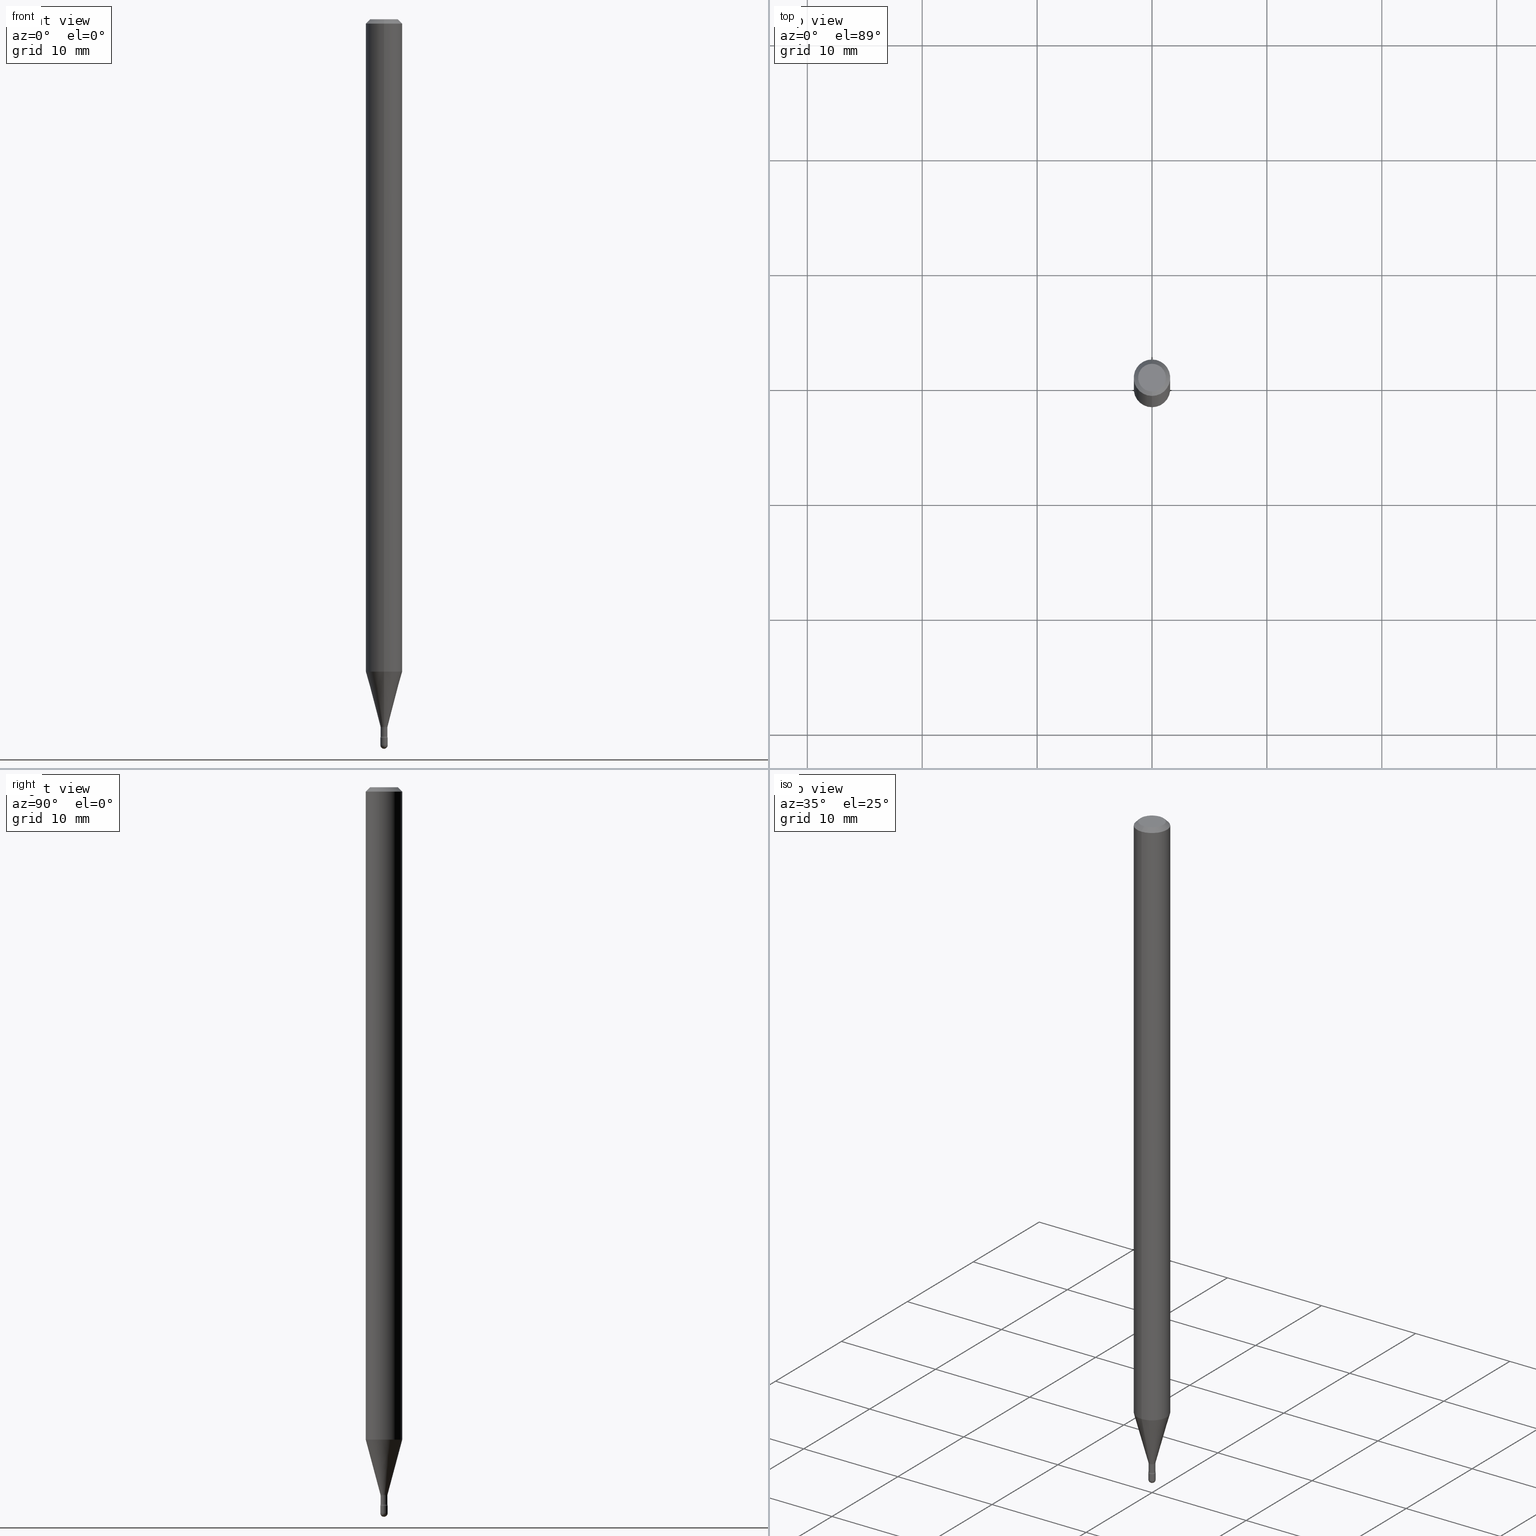
[diagram: canonical four-view strip — front | top / right | iso, engineering-drawing reading convention]
A machine part, canonical four-view strip (front | top / right | iso — engineering-drawing reading convention). The complete STEP part file that produces these views, byte-faithful:
ISO-10303-21;
HEADER;
FILE_DESCRIPTION (( 'STEP AP203' ),
    '1' );
FILE_NAME ('03808.STEP',
    '2024-04-09T20:33:00',
    ( '' ),
    ( '' ),
    'SwSTEP 2.0',
    'SolidWorks 2023',
    '' );
FILE_SCHEMA (( 'CONFIG_CONTROL_DESIGN' ));
ENDSEC;

DATA;
#1 = VECTOR ( 'NONE', #117, 39.37007874015748143 ) ;
#2 = DIRECTION ( 'NONE',  ( -1.000000000000000000, 6.982962677686265922E-15, -4.883557194083112340E-29 ) ) ;
#3 = LINE ( 'NONE', #57, #485 ) ;
#4 = EDGE_CURVE ( 'NONE', #223, #219, #300, .T. ) ;
#5 = FACE_OUTER_BOUND ( 'NONE', #286, .T. ) ;
#6 = APPROVAL_ROLE ( '' ) ;
#7 = DIRECTION ( 'NONE',  ( 1.000000000000000000, -6.982962677686267499E-15, 4.876176775795936353E-29 ) ) ;
#8 = APPROVAL_ROLE ( '' ) ;
#9 = CARTESIAN_POINT ( 'NONE',  ( -1.867942516280482500E-16, -0.02675000000000847186, -2.426974787463811456 ) ) ;
#10 = DIRECTION ( 'NONE',  ( -6.982962677686266711E-15, -1.000000000000000000, 3.491484112957866443E-15 ) ) ;
#11 = AXIS2_PLACEMENT_3D ( 'NONE', #213, #386, #94 ) ;
#12 = AXIS2_PLACEMENT_3D ( 'NONE', #35, #262, #558 ) ;
#13 = LENGTH_MEASURE_WITH_UNIT ( LENGTH_MEASURE( 0.02539999999999999897 ), #415 );
#14 = EDGE_CURVE ( 'NONE', #219, #223, #458, .T. ) ;
#15 = DIRECTION ( 'NONE',  ( -2.445466869031180399E-29, 3.491484112957866837E-15, 1.000000000000000000 ) ) ;
#16 = DIRECTION ( 'NONE',  ( -2.445466869031180399E-29, 3.491484112957866837E-15, 1.000000000000000000 ) ) ;
#17 = CALENDAR_DATE ( 2024, 9, 4 ) ;
#18 = DIRECTION ( 'NONE',  ( 1.000000000000000000, -6.982962677686267499E-15, 4.876176775795936353E-29 ) ) ;
#19 = DIRECTION ( 'NONE',  ( 6.982962677686265922E-15, 1.000000000000000000, -3.483106191921935554E-15 ) ) ;
#20 = DIRECTION ( 'NONE',  ( 6.982962677686265922E-15, 1.000000000000000000, 0.000000000000000000 ) ) ;
#21 = EDGE_LOOP ( 'NONE', ( #258, #340, #116, #163 ) ) ;
#22 = AXIS2_PLACEMENT_3D ( 'NONE', #298, #474, #518 ) ;
#23 = CC_DESIGN_APPROVAL ( #115, ( #71 ) ) ;
#24 = EDGE_CURVE ( 'NONE', #329, #136, #250, .T. ) ;
#25 = EDGE_LOOP ( 'NONE', ( #75, #325, #545, #554 ) ) ;
#26 = LINE ( 'NONE', #196, #1 ) ;
#27 = ORIENTED_EDGE ( 'NONE', *, *, #440, .F. ) ;
#28 = VERTEX_POINT ( 'NONE', #294 ) ;
#29 = CARTESIAN_POINT ( 'NONE',  ( 0.01250000000000000243, -8.727830476773153796E-15, -2.487500000000000266 ) ) ;
#30 = ORIENTED_EDGE ( 'NONE', *, *, #277, .F. ) ;
#31 = CIRCLE ( 'NONE', #81, 0.01174999999999998788 ) ;
#32 = EDGE_CURVE ( 'NONE', #66, #338, #202, .T. ) ;
#33 = ORGANIZATION ( 'UNSPECIFIED', 'UNSPECIFIED', '' ) ;
#34 = ADVANCED_FACE ( 'NONE', ( #564 ), #169, .T. ) ;
#35 = CARTESIAN_POINT ( 'NONE',  ( 6.083103655385528181E-29, -8.685059830372324987E-15, -2.487500000000000266 ) ) ;
#36 = CARTESIAN_POINT ( 'NONE',  ( 6.083103655385528181E-29, -8.685059830372324987E-15, -2.487500000000000266 ) ) ;
#37 = CARTESIAN_POINT ( 'NONE',  ( 6.083103655385528181E-29, -8.685059830372324987E-15, -2.487500000000000266 ) ) ;
#38 = ORIENTED_EDGE ( 'NONE', *, *, #85, .T. ) ;
#39 = CARTESIAN_POINT ( 'NONE',  ( 6.020739431554766394E-29, -8.596033886102268504E-15, -2.462000000000000188 ) ) ;
#40 = DIRECTION ( 'NONE',  ( 1.000000000000000000, -6.982962677686294321E-15, 0.000000000000000000 ) ) ;
#41 = EDGE_CURVE ( 'NONE', #299, #329, #102, .T. ) ;
#42 = AXIS2_PLACEMENT_3D ( 'NONE', #317, #16, #153 ) ;
#43 = AXIS2_PLACEMENT_3D ( 'NONE', #513, #255, #563 ) ;
#44 = AXIS2_PLACEMENT_3D ( 'NONE', #536, #15, #108 ) ;
#45 = APPROVAL_PERSON_ORGANIZATION ( #312, #58, #6 ) ;
#46 = DIRECTION ( 'NONE',  ( -6.982962677686265922E-15, -1.000000000000000000, 4.370956789862821150E-15 ) ) ;
#47 = UNCERTAINTY_MEASURE_WITH_UNIT (LENGTH_MEASURE( 1.000000000000000082E-05 ), #318, 'distance_accuracy_value', 'NONE');
#48 = DIRECTION ( 'NONE',  ( 4.937700262164548042E-15, 0.7071067811865451302, -0.7071067811865499042 ) ) ;
#49 = DIRECTION ( 'NONE',  ( -6.982962677686267499E-15, -1.000000000000000000, 0.000000000000000000 ) ) ;
#50 = EDGE_LOOP ( 'NONE', ( #470, #346, #283, #215 ) ) ;
#51 = DATE_AND_TIME ( #443, #313 ) ;
#52 = AXIS2_PLACEMENT_3D ( 'NONE', #492, #271, #451 ) ;
#53 = DIRECTION ( 'NONE',  ( -2.438088387897960049E-29, 3.491481338843145188E-15, 1.000000000000000000 ) ) ;
#54 = APPLICATION_CONTEXT ( 'configuration controlled 3d designs of mechanical parts and assemblies' ) ;
#55 = PERSON_AND_ORGANIZATION ( #454, #33 ) ;
#56 = FACE_OUTER_BOUND ( 'NONE', #477, .T. ) ;
#57 = CARTESIAN_POINT ( 'NONE',  ( -4.287811248607203282E-16, -0.06250000000000005551, -0.01499999999999986587 ) ) ;
#58 = APPROVAL ( #263, 'UNSPECIFIED' ) ;
#59 = FACE_OUTER_BOUND ( 'NONE', #74, .T. ) ;
#60 = AXIS2_PLACEMENT_3D ( 'NONE', #87, #256, #40 ) ;
#61 = APPLICATION_CONTEXT ( 'configuration controlled 3d designs of mechanical parts and assemblies' ) ;
#62 = AXIS2_PLACEMENT_3D ( 'NONE', #112, #207, #211 ) ;
#63 = APPLICATION_PROTOCOL_DEFINITION ( 'international standard', 'config_control_design', 1994, #54 ) ;
#64 = CYLINDRICAL_SURFACE ( 'NONE', #357, 0.01250000000000000243 ) ;
#65 = FACE_OUTER_BOUND ( 'NONE', #423, .T. ) ;
#66 = VERTEX_POINT ( 'NONE', #397 ) ;
#67 = APPROVAL_DATE_TIME ( #420, #115 ) ;
#68 = EDGE_CURVE ( 'NONE', #125, #473, #184, .T. ) ;
#69 = VECTOR ( 'NONE', #529, 39.37007874015748143 ) ;
#70 = AXIS2_PLACEMENT_3D ( 'NONE', #37, #86, #378 ) ;
#71 = SECURITY_CLASSIFICATION ( '', '', #121 ) ;
#72 = ORIENTED_EDGE ( 'NONE', *, *, #412, .F. ) ;
#73 = CARTESIAN_POINT ( 'NONE',  ( 5.925592433718652298E-29, -8.460188974217597604E-15, -2.423092501787273534 ) ) ;
#74 = EDGE_LOOP ( 'NONE', ( #203, #480, #382, #251 ) ) ;
#75 = ORIENTED_EDGE ( 'NONE', *, *, #259, .F. ) ;
#76 = DIRECTION ( 'NONE',  ( -6.982962677686265133E-15, -1.000000000000000000, 0.000000000000000000 ) ) ;
#77 = EDGE_LOOP ( 'NONE', ( #287, #96 ) ) ;
#78 = ADVANCED_FACE ( 'NONE', ( #56 ), #150, .T. ) ;
#79 = CARTESIAN_POINT ( 'NONE',  ( 4.364351673553919652E-16, 0.06249999999999995143, -0.01500000000000030129 ) ) ;
#80 = ORIENTED_EDGE ( 'NONE', *, *, #414, .F. ) ;
#81 = AXIS2_PLACEMENT_3D ( 'NONE', #460, #155, #193 ) ;
#82 = CIRCLE ( 'NONE', #185, 0.01249999999999996947 ) ;
#83 = CARTESIAN_POINT ( 'NONE',  ( 6.083103655385528181E-29, -8.685059830372324987E-15, -2.487500000000000266 ) ) ;
#84 = ORIENTED_EDGE ( 'NONE', *, *, #404, .F. ) ;
#85 = EDGE_CURVE ( 'NONE', #176, #292, #3, .T. ) ;
#86 = DIRECTION ( 'NONE',  ( -2.445468806185136597E-29, 3.491481338843145583E-15, 1.000000000000000000 ) ) ;
#87 = CARTESIAN_POINT ( 'NONE',  ( 6.020744200827806517E-29, -8.596027056231825938E-15, -2.462000000000000188 ) ) ;
#88 = FACE_OUTER_BOUND ( 'NONE', #245, .T. ) ;
#89 = ORIENTED_EDGE ( 'NONE', *, *, #404, .T. ) ;
#90 = ORIENTED_EDGE ( 'NONE', *, *, #544, .F. ) ;
#91 = CIRCLE ( 'NONE', #260, 0.01175000000000000350 ) ;
#92 = VECTOR ( 'NONE', #48, 39.37007874015748143 ) ;
#93 = CARTESIAN_POINT ( 'NONE',  ( 3.840629472727447874E-16, 0.04749999999999999362, -2.485923956665947374E-16 ) ) ;
#94 = DIRECTION ( 'NONE',  ( 6.982962677686265922E-15, 1.000000000000000000, -3.483106191921935554E-15 ) ) ;
#95 = ORIENTED_EDGE ( 'NONE', *, *, #230, .T. ) ;
#96 = ORIENTED_EDGE ( 'NONE', *, *, #395, .T. ) ;
#97 = ADVANCED_FACE ( 'NONE', ( #320 ), #187, .T. ) ;
#98 = DIRECTION ( 'NONE',  ( -2.445466869031180118E-29, 3.491484112957866837E-15, 1.000000000000000000 ) ) ;
#99 = CARTESIAN_POINT ( 'NONE',  ( 2.656048273965440826E-16, 0.01226111260565552162, -2.423092501787273534 ) ) ;
#100 = AXIS2_PLACEMENT_3D ( 'NONE', #172, #436, #46 ) ;
#101 = AXIS2_PLACEMENT_3D ( 'NONE', #217, #471, #291 ) ;
#102 = LINE ( 'NONE', #360, #279 ) ;
#103 = LOCAL_TIME ( 16, 33, 0.000000000000000000, #506 ) ;
#104 =( NAMED_UNIT ( * ) SI_UNIT ( $, .STERADIAN. ) SOLID_ANGLE_UNIT ( ) );
#105 = DIRECTION ( 'NONE',  ( -2.445466869031180399E-29, 3.491484112957866837E-15, 1.000000000000000000 ) ) ;
#106 = APPROVAL_STATUS ( 'not_yet_approved' ) ;
#107 = FACE_OUTER_BOUND ( 'NONE', #442, .T. ) ;
#108 = DIRECTION ( 'NONE',  ( -6.982962677686266711E-15, -1.000000000000000000, 3.491484112957866443E-15 ) ) ;
#109 = DIRECTION ( 'NONE',  ( 2.445466869031180399E-29, -3.491484112957866837E-15, -1.000000000000000000 ) ) ;
#110 = CARTESIAN_POINT ( 'NONE',  ( 3.316907271900976096E-16, 0.04749999999999999362, 3.181775392957628042E-17 ) ) ;
#111 = DIRECTION ( 'NONE',  ( -6.982962677686266711E-15, -1.000000000000000000, 3.491484112957866443E-15 ) ) ;
#112 = CARTESIAN_POINT ( 'NONE',  ( 2.023538770995804886E-45, -2.889108140282391545E-31, -8.274690030109604637E-17 ) ) ;
#113 = CARTESIAN_POINT ( 'NONE',  ( 5.925592433718652298E-29, -8.460188974217597604E-15, -2.423092501787273534 ) ) ;
#114 = EDGE_CURVE ( 'NONE', #140, #136, #356, .T. ) ;
#115 = APPROVAL ( #364, 'UNSPECIFIED' ) ;
#116 = ORIENTED_EDGE ( 'NONE', *, *, #432, .T. ) ;
#117 = DIRECTION ( 'NONE',  ( -1.807323732225328167E-15, -0.2588190451025179084, 0.9659258262890690894 ) ) ;
#118 = CIRCLE ( 'NONE', #148, 0.01226111260566398187 ) ;
#119 = ORIENTED_EDGE ( 'NONE', *, *, #328, .F. ) ;
#120 = CIRCLE ( 'NONE', #130, 0.01250000000000000243 ) ;
#121 = SECURITY_CLASSIFICATION_LEVEL ( 'unclassified' ) ;
#122 = ADVANCED_FACE ( 'NONE', ( #59 ), #310, .F. ) ;
#123 = DIRECTION ( 'NONE',  ( -6.982962677686265133E-15, -1.000000000000000000, 0.000000000000000000 ) ) ;
#124 = ORIENTED_EDGE ( 'NONE', *, *, #307, .T. ) ;
#125 = VERTEX_POINT ( 'NONE', #152 ) ;
#126 = PLANE ( 'NONE',  #365 ) ;
#127 = DIRECTION ( 'NONE',  ( -2.445466869031180399E-29, 3.491484112957866837E-15, 1.000000000000000000 ) ) ;
#128 = ORIENTED_EDGE ( 'NONE', *, *, #277, .T. ) ;
#129 = AXIS2_PLACEMENT_3D ( 'NONE', #231, #53, #527 ) ;
#130 = AXIS2_PLACEMENT_3D ( 'NONE', #36, #154, #324 ) ;
#131 = CARTESIAN_POINT ( 'NONE',  ( 2.023538770995804886E-45, -2.889108140282391545E-31, -8.274690030109604637E-17 ) ) ;
#132 = DIRECTION ( 'NONE',  ( -6.982962677686265922E-15, -1.000000000000000000, 0.000000000000000000 ) ) ;
#133 = ADVANCED_FACE ( 'NONE', ( #235 ), #490, .T. ) ;
#134 = CARTESIAN_POINT ( 'NONE',  ( -1.169113584055446105E-44, 1.669184350826100908E-30, 4.780733988912460139E-16 ) ) ;
#135 = CYLINDRICAL_SURFACE ( 'NONE', #388, 0.01174999999999999656 ) ;
#136 = VERTEX_POINT ( 'NONE', #275 ) ;
#137 = ORIENTED_EDGE ( 'NONE', *, *, #259, .T. ) ;
#138 = DIRECTION ( 'NONE',  ( -2.445466869031180399E-29, 3.491484112957866837E-15, 1.000000000000000000 ) ) ;
#139 = EDGE_CURVE ( 'NONE', #239, #338, #355, .T. ) ;
#140 = VERTEX_POINT ( 'NONE', #99 ) ;
#141 = EDGE_CURVE ( 'NONE', #125, #136, #183, .T. ) ;
#142 = CARTESIAN_POINT ( 'NONE',  ( 0.000000000000000000, 0.000000000000000000, 0.000000000000000000 ) ) ;
#143 = FACE_OUTER_BOUND ( 'NONE', #77, .T. ) ;
#144 = PLANE ( 'NONE',  #129 ) ;
#145 = PERSON_AND_ORGANIZATION_ROLE ( 'design_supplier' ) ;
#146 = PRODUCT_DEFINITION ( 'UNKNOWN', '', #366, #301 ) ;
#147 = PERSON_AND_ORGANIZATION ( #454, #33 ) ;
#148 = AXIS2_PLACEMENT_3D ( 'NONE', #228, #450, #400 ) ;
#149 = CIRCLE ( 'NONE', #101, 0.01250000000000000069 ) ;
#150 = CYLINDRICAL_SURFACE ( 'NONE', #467, 0.06250000000000000000 ) ;
#151 = COORDINATED_UNIVERSAL_TIME_OFFSET ( 5, 0, .BEHIND. ) ;
#152 = CARTESIAN_POINT ( 'NONE',  ( 8.615330671097230074E-17, 0.01174999999999140794, -2.457316251501201254 ) ) ;
#153 = DIRECTION ( 'NONE',  ( -6.982962677686265922E-15, -1.000000000000000000, 3.491484112957868415E-15 ) ) ;
#154 = DIRECTION ( 'NONE',  ( -2.445468806185136597E-29, 3.491481338843145583E-15, 1.000000000000000000 ) ) ;
#155 = DIRECTION ( 'NONE',  ( -2.445466869031180399E-29, 3.491484112957866837E-15, 1.000000000000000000 ) ) ;
#156 = CIRCLE ( 'NONE', #234, 0.06250000000000000000 ) ;
#157 = EDGE_LOOP ( 'NONE', ( #376, #137, #95, #348 ) ) ;
#158 = ORIENTED_EDGE ( 'NONE', *, *, #141, .F. ) ;
#159 = APPROVAL_ROLE ( '' ) ;
#160 = ORIENTED_EDGE ( 'NONE', *, *, #24, .T. ) ;
#161 = ADVANCED_FACE ( 'NONE', ( #65 ), #144, .T. ) ;
#162 = AXIS2_PLACEMENT_3D ( 'NONE', #83, #552, #220 ) ;
#163 = ORIENTED_EDGE ( 'NONE', *, *, #290, .F. ) ;
#164 = EDGE_LOOP ( 'NONE', ( #80, #128, #90, #547 ) ) ;
#165 = ORIENTED_EDGE ( 'NONE', *, *, #236, .T. ) ;
#166 = CARTESIAN_POINT ( 'NONE',  ( 3.668200303546790742E-31, -5.237226169436829443E-17, -0.01500000000000008271 ) ) ;
#167 = CARTESIAN_POINT ( 'NONE',  ( 5.935086434716741154E-29, -8.473743912979191978E-15, -2.426974787463811456 ) ) ;
#168 = EDGE_CURVE ( 'NONE', #28, #140, #118, .T. ) ;
#169 = CONICAL_SURFACE ( 'NONE', #11, 0.06250000000000000000, 0.7853981633974483900 ) ;
#170 = AXIS2_PLACEMENT_3D ( 'NONE', #131, #390, #343 ) ;
#171 = DIRECTION ( 'NONE',  ( -1.000000000000000000, 6.982962677686266711E-15, -4.883557194083112901E-29 ) ) ;
#172 = CARTESIAN_POINT ( 'NONE',  ( 5.467081872275488067E-29, -7.805556371676380338E-15, -2.235598421515879952 ) ) ;
#173 = DIRECTION ( 'NONE',  ( -2.445466869031180118E-29, 3.491484112957866837E-15, 1.000000000000000000 ) ) ;
#174 = ADVANCED_FACE ( 'NONE', ( #5 ), #531, .T. ) ;
#175 = CARTESIAN_POINT ( 'NONE',  ( -8.881784196995158866E-17, -0.01250000000000867084, -2.487500000000000266 ) ) ;
#176 = VERTEX_POINT ( 'NONE', #484 ) ;
#177 = TOROIDAL_SURFACE ( 'NONE', #532, 0.02674999999999999947, 0.01500000000000002373 ) ;
#178 = AXIS2_PLACEMENT_3D ( 'NONE', #482, #98, #229 ) ;
#179 = PLANE ( 'NONE',  #178 ) ;
#180 = DIRECTION ( 'NONE',  ( -2.445468806185136877E-29, 3.491481338843145188E-15, 1.000000000000000000 ) ) ;
#181 = DIRECTION ( 'NONE',  ( -2.445468806185136597E-29, 3.491481338843145583E-15, 1.000000000000000000 ) ) ;
#182 = DATE_TIME_ROLE ( 'creation_date' ) ;
#183 = LINE ( 'NONE', #272, #69 ) ;
#184 = CIRCLE ( 'NONE', #557, 0.01500000000000001159 ) ;
#185 = AXIS2_PLACEMENT_3D ( 'NONE', #293, #555, #257 ) ;
#186 = CARTESIAN_POINT ( 'NONE',  ( 3.668200303546790742E-31, -5.237226169436829443E-17, -0.01500000000000008271 ) ) ;
#187 = CYLINDRICAL_SURFACE ( 'NONE', #374, 0.06250000000000000000 ) ;
#188 = DATE_AND_TIME ( #17, #534 ) ;
#189 = ADVANCED_FACE ( 'NONE', ( #406 ), #177, .F. ) ;
#190 = ADVANCED_FACE ( 'NONE', ( #309 ), #330, .T. ) ;
#191 = DIRECTION ( 'NONE',  ( -2.445466869031180399E-29, 3.491484112957866837E-15, 1.000000000000000000 ) ) ;
#192 = PERSON_AND_ORGANIZATION_ROLE ( 'classification_officer' ) ;
#193 = DIRECTION ( 'NONE',  ( -6.982962677686266711E-15, -1.000000000000000000, 0.000000000000000000 ) ) ;
#194 = AXIS2_PLACEMENT_3D ( 'NONE', #167, #517, #132 ) ;
#195 = AXIS2_PLACEMENT_3D ( 'NONE', #142, #361, #535 ) ;
#196 = CARTESIAN_POINT ( 'NONE',  ( -8.561889171220093965E-17, -0.01226111260567244211, -2.423092501787273534 ) ) ;
#197 = ORIENTED_EDGE ( 'NONE', *, *, #544, .T. ) ;
#198 = APPROVAL ( #106, 'UNSPECIFIED' ) ;
#199 = DATE_AND_TIME ( #540, #478 ) ;
#200 = DIRECTION ( 'NONE',  ( -6.982962677686265133E-15, -1.000000000000000000, 0.000000000000000000 ) ) ;
#201 = VERTEX_POINT ( 'NONE', #248 ) ;
#202 = CIRCLE ( 'NONE', #60, 0.01250000000000000069 ) ;
#203 = ORIENTED_EDGE ( 'NONE', *, *, #68, .F. ) ;
#204 = AXIS2_PLACEMENT_3D ( 'NONE', #39, #127, #295 ) ;
#205 = DATE_TIME_ROLE ( 'classification_date' ) ;
#206 = DIRECTION ( 'NONE',  ( -6.982962677686265922E-15, -1.000000000000000000, 3.491484112957868415E-15 ) ) ;
#207 = DIRECTION ( 'NONE',  ( -2.445466869031180399E-29, 3.491484112957866837E-15, 1.000000000000000000 ) ) ;
#208 = EDGE_CURVE ( 'NONE', #136, #329, #91, .T. ) ;
#209 = DIRECTION ( 'NONE',  ( 6.982962677686266711E-15, 1.000000000000000000, 0.000000000000000000 ) ) ;
#210 = CC_DESIGN_DATE_AND_TIME_ASSIGNMENT ( #199, #205, ( #71 ) ) ;
#211 = DIRECTION ( 'NONE',  ( -6.982962677686266711E-15, -1.000000000000000000, 3.491484112957867231E-15 ) ) ;
#212 = DIRECTION ( 'NONE',  ( 6.982962677686266711E-15, 1.000000000000000000, 0.000000000000000000 ) ) ;
#213 = CARTESIAN_POINT ( 'NONE',  ( 3.668200303546790742E-31, -5.237226169436829443E-17, -0.01500000000000008271 ) ) ;
#214 = VECTOR ( 'NONE', #180, 39.37007874015748143 ) ;
#215 = ORIENTED_EDGE ( 'NONE', *, *, #230, .F. ) ;
#216 = TOROIDAL_SURFACE ( 'NONE', #22, 0.02675000000000000294, 0.01500000000000001506 ) ;
#217 = CARTESIAN_POINT ( 'NONE',  ( 6.020739431554766394E-29, -8.596033886102268504E-15, -2.462000000000000188 ) ) ;
#218 = CARTESIAN_POINT ( 'NONE',  ( 5.467081872275488067E-29, -7.805556371676380338E-15, -2.235598421515879952 ) ) ;
#219 = VERTEX_POINT ( 'NONE', #238 ) ;
#220 = DIRECTION ( 'NONE',  ( 1.000000000000000000, -6.982962677686292743E-15, 0.000000000000000000 ) ) ;
#221 = VERTEX_POINT ( 'NONE', #457 ) ;
#222 = DIRECTION ( 'NONE',  ( -2.445468806185136877E-29, 3.491481338843145188E-15, 1.000000000000000000 ) ) ;
#223 = VERTEX_POINT ( 'NONE', #510 ) ;
#224 = AXIS2_PLACEMENT_3D ( 'NONE', #408, #314, #445 ) ;
#225 = AXIS2_PLACEMENT_3D ( 'NONE', #9, #2, #49 ) ;
#226 = APPROVAL_DATE_TIME ( #51, #58 ) ;
#227 = DIRECTION ( 'NONE',  ( 1.839019923739597949E-15, 0.2588190451025246253, 0.9659258262890670910 ) ) ;
#228 = CARTESIAN_POINT ( 'NONE',  ( 5.925592433718652298E-29, -8.460188974217597604E-15, -2.423092501787273534 ) ) ;
#229 = DIRECTION ( 'NONE',  ( -6.982962677686265922E-15, -1.000000000000000000, 3.491484112957866837E-15 ) ) ;
#230 = EDGE_CURVE ( 'NONE', #28, #219, #26, .T. ) ;
#231 = CARTESIAN_POINT ( 'NONE',  ( 6.020744200827806517E-29, -8.596027056231825938E-15, -2.462000000000000188 ) ) ;
#232 = DIRECTION ( 'NONE',  ( -6.982962677686265922E-15, -1.000000000000000000, 3.491484112957866443E-15 ) ) ;
#233 = CLOSED_SHELL ( 'NONE', ( #539, #387, #161, #342, #174 ) ) ;
#234 = AXIS2_PLACEMENT_3D ( 'NONE', #166, #339, #515 ) ;
#235 = FACE_OUTER_BOUND ( 'NONE', #344, .T. ) ;
#236 = EDGE_CURVE ( 'NONE', #299, #125, #322, .T. ) ;
#237 = CARTESIAN_POINT ( 'NONE',  ( -1.867942516280475598E-16, -0.02675000000000858288, -2.457316251501201254 ) ) ;
#238 = CARTESIAN_POINT ( 'NONE',  ( -4.364351673553370901E-16, -0.06250000000000781319, -2.235598421515879952 ) ) ;
#239 = VERTEX_POINT ( 'NONE', #29 ) ;
#240 = DIRECTION ( 'NONE',  ( 6.982962677686265922E-15, 1.000000000000000000, -3.491484112957866837E-15 ) ) ;
#241 = CC_DESIGN_PERSON_AND_ORGANIZATION_ASSIGNMENT ( #147, #405, ( #496 ) ) ;
#242 = VECTOR ( 'NONE', #222, 39.37007874015748143 ) ;
#243 = EDGE_LOOP ( 'NONE', ( #72, #565, #89, #508 ) ) ;
#244 = CALENDAR_DATE ( 2024, 9, 4 ) ;
#245 = EDGE_LOOP ( 'NONE', ( #158, #548, #542, #278 ) ) ;
#246 = FACE_OUTER_BOUND ( 'NONE', #157, .T. ) ;
#247 = ORIENTED_EDGE ( 'NONE', *, *, #553, .F. ) ;
#248 = CARTESIAN_POINT ( 'NONE',  ( 4.440892098501175406E-16, 0.06249999999999995143, -0.01500000000000030129 ) ) ;
#249 = CARTESIAN_POINT ( 'NONE',  ( 0.01250000000000000069, -8.683314089702904272E-15, -2.462000000000000188 ) ) ;
#250 = CIRCLE ( 'NONE', #194, 0.01175000000000000350 ) ;
#251 = ORIENTED_EDGE ( 'NONE', *, *, #335, .T. ) ;
#252 = VECTOR ( 'NONE', #173, 39.37007874015748143 ) ;
#253 = EDGE_CURVE ( 'NONE', #125, #299, #31, .T. ) ;
#254 = FACE_OUTER_BOUND ( 'NONE', #21, .T. ) ;
#255 = DIRECTION ( 'NONE',  ( -2.445466869031180399E-29, 3.491484112957866837E-15, 1.000000000000000000 ) ) ;
#256 = DIRECTION ( 'NONE',  ( -2.445468806185136597E-29, 3.491481338843145583E-15, 1.000000000000000000 ) ) ;
#257 = DIRECTION ( 'NONE',  ( -7.105427357601001070E-15, -1.000000000000000000, 0.000000000000000000 ) ) ;
#258 = ORIENTED_EDGE ( 'NONE', *, *, #253, .F. ) ;
#259 = EDGE_CURVE ( 'NONE', #140, #28, #398, .T. ) ;
#260 = AXIS2_PLACEMENT_3D ( 'NONE', #418, #336, #331 ) ;
#261 = AXIS2_PLACEMENT_3D ( 'NONE', #464, #276, #76 ) ;
#262 = DIRECTION ( 'NONE',  ( -2.445468806185136597E-29, 3.491481338843145583E-15, 1.000000000000000000 ) ) ;
#263 = APPROVAL_STATUS ( 'not_yet_approved' ) ;
#264 = DIRECTION ( 'NONE',  ( 7.105427357601001859E-15, 1.000000000000000000, 0.000000000000000000 ) ) ;
#265 = AXIS2_PLACEMENT_3D ( 'NONE', #270, #483, #111 ) ;
#266 = ADVANCED_FACE ( 'NONE', ( #246 ), #267, .T. ) ;
#267 = CONICAL_SURFACE ( 'NONE', #533, 0.01226111260566398187, 0.2617993877991499629 ) ;
#268 = CARTESIAN_POINT ( 'NONE',  ( 0.000000000000000000, 0.000000000000000000, 0.000000000000000000 ) ) ;
#269 = COORDINATED_UNIVERSAL_TIME_OFFSET ( 5, 0, .BEHIND. ) ;
#270 = CARTESIAN_POINT ( 'NONE',  ( 6.009290239977977822E-29, -8.579673835752433814E-15, -2.457316251501201254 ) ) ;
#271 = DIRECTION ( 'NONE',  ( -2.445468806185136597E-29, 3.491481338843145583E-15, 1.000000000000000000 ) ) ;
#272 = CARTESIAN_POINT ( 'NONE',  ( 8.348877145181173506E-17, 0.01174999999999999656, 4.370484605639911277E-16 ) ) ;
#273 = ADVANCED_FACE ( 'NONE', ( #285 ), #323, .T. ) ;
#274 = CLOSED_SHELL ( 'NONE', ( #497, #133, #372, #34, #78, #273, #266, #97, #190, #530, #447, #122, #383, #189 ) ) ;
#275 = CARTESIAN_POINT ( 'NONE',  ( 8.348877145187189803E-17, 0.01174999999999152937, -2.426974787463811456 ) ) ;
#276 = DIRECTION ( 'NONE',  ( -2.445466869031180399E-29, 3.491484112957866837E-15, 1.000000000000000000 ) ) ;
#277 = EDGE_CURVE ( 'NONE', #337, #221, #516, .T. ) ;
#278 = ORIENTED_EDGE ( 'NONE', *, *, #208, .F. ) ;
#279 = VECTOR ( 'NONE', #537, 39.37007874015748143 ) ;
#280 = CARTESIAN_POINT ( 'NONE',  ( 6.009285479778078448E-29, -8.579680652629622563E-15, -2.457316251501201254 ) ) ;
#281 = AXIS2_PLACEMENT_3D ( 'NONE', #268, #181, #7 ) ;
#282 = CIRCLE ( 'NONE', #43, 0.06250000000000000000 ) ;
#283 = ORIENTED_EDGE ( 'NONE', *, *, #14, .F. ) ;
#284 = ORIENTED_EDGE ( 'NONE', *, *, #335, .F. ) ;
#285 = FACE_OUTER_BOUND ( 'NONE', #50, .T. ) ;
#286 = EDGE_LOOP ( 'NONE', ( #551, #389, #124, #368, #370 ) ) ;
#287 = ORIENTED_EDGE ( 'NONE', *, *, #553, .T. ) ;
#288 = CARTESIAN_POINT ( 'NONE',  ( 6.083103655385528181E-29, -8.685059830372324987E-15, -2.487500000000000266 ) ) ;
#289 = EDGE_LOOP ( 'NONE', ( #303, #430, #466, #160 ) ) ;
#290 = EDGE_CURVE ( 'NONE', #299, #504, #486, .T. ) ;
#291 = DIRECTION ( 'NONE',  ( -6.982962677686265133E-15, -1.000000000000000000, 0.000000000000000000 ) ) ;
#292 = VERTEX_POINT ( 'NONE', #503 ) ;
#293 = CARTESIAN_POINT ( 'NONE',  ( 6.083103655385528181E-29, -8.685059830372324987E-15, -2.487500000000000266 ) ) ;
#294 = CARTESIAN_POINT ( 'NONE',  ( -8.561889171220093965E-17, -0.01226111260567244211, -2.423092501787273534 ) ) ;
#295 = DIRECTION ( 'NONE',  ( -6.982962677686265133E-15, -1.000000000000000000, 0.000000000000000000 ) ) ;
#296 = VERTEX_POINT ( 'NONE', #175 ) ;
#297 = ORIENTED_EDGE ( 'NONE', *, *, #514, .F. ) ;
#298 = CARTESIAN_POINT ( 'NONE',  ( 6.009290239977977822E-29, -8.579673835752433814E-15, -2.457316251501201254 ) ) ;
#299 = VERTEX_POINT ( 'NONE', #523 ) ;
#300 = CIRCLE ( 'NONE', #100, 0.06250000000000000000 ) ;
#301 = DESIGN_CONTEXT ( 'detailed design', #54, 'design' ) ;
#302 = CIRCLE ( 'NONE', #162, 0.01250000000000000243 ) ;
#303 = ORIENTED_EDGE ( 'NONE', *, *, #114, .F. ) ;
#304 = LINE ( 'NONE', #433, #252 ) ;
#305 = DIRECTION ( 'NONE',  ( -6.982962677686265922E-15, -1.000000000000000000, 3.491484112957866443E-15 ) ) ;
#306 = EDGE_CURVE ( 'NONE', #327, #201, #468, .T. ) ;
#307 = EDGE_CURVE ( 'NONE', #296, #239, #509, .T. ) ;
#308 = PERSON_AND_ORGANIZATION ( #454, #33 ) ;
#309 = FACE_OUTER_BOUND ( 'NONE', #521, .T. ) ;
#310 = TOROIDAL_SURFACE ( 'NONE', #265, 0.02675000000000000294, 0.01500000000000001506 ) ;
#311 = AXIS2_PLACEMENT_3D ( 'NONE', #288, #416, #20 ) ;
#312 = PERSON_AND_ORGANIZATION ( #454, #33 ) ;
#313 = LOCAL_TIME ( 16, 33, 0.000000000000000000, #269 ) ;
#314 = DIRECTION ( 'NONE',  ( 1.000000000000000000, -7.105427357601001070E-15, 4.926315542515189764E-29 ) ) ;
#315 = EDGE_CURVE ( 'NONE', #201, #292, #282, .T. ) ;
#316 = CARTESIAN_POINT ( 'NONE',  ( 8.712044494297058757E-17, 0.01226111260565552162, -2.423092501787273534 ) ) ;
#317 = CARTESIAN_POINT ( 'NONE',  ( -1.169113584055446105E-44, 1.669184350826100908E-30, 4.780733988912460139E-16 ) ) ;
#318 =( CONVERSION_BASED_UNIT ( 'INCH', #13 ) LENGTH_UNIT ( ) NAMED_UNIT ( #481 ) );
#319 = COORDINATED_UNIVERSAL_TIME_OFFSET ( 5, 0, .BEHIND. ) ;
#320 = FACE_OUTER_BOUND ( 'NONE', #243, .T. ) ;
#321 = SHAPE_DEFINITION_REPRESENTATION ( #410, #371 ) ;
#322 = CIRCLE ( 'NONE', #524, 0.01174999999999998788 ) ;
#323 = CONICAL_SURFACE ( 'NONE', #261, 0.01226111260566398187, 0.2617993877991499629 ) ;
#324 = DIRECTION ( 'NONE',  ( 1.000000000000000000, -6.982962677686292743E-15, 0.000000000000000000 ) ) ;
#325 = ORIENTED_EDGE ( 'NONE', *, *, #114, .T. ) ;
#326 = DIRECTION ( 'NONE',  ( -2.445466869031180399E-29, 3.491484112957866837E-15, 1.000000000000000000 ) ) ;
#327 = VERTEX_POINT ( 'NONE', #93 ) ;
#328 = EDGE_CURVE ( 'NONE', #550, #296, #302, .T. ) ;
#329 = VERTEX_POINT ( 'NONE', #384 ) ;
#330 = CONICAL_SURFACE ( 'NONE', #446, 0.06250000000000000000, 0.7853981633974483900 ) ;
#331 = DIRECTION ( 'NONE',  ( -6.982962677686265922E-15, -1.000000000000000000, 0.000000000000000000 ) ) ;
#332 = CIRCLE ( 'NONE', #12, 0.01250000000000000243 ) ;
#333 = ORIENTED_EDGE ( 'NONE', *, *, #440, .T. ) ;
#334 = ORIENTED_EDGE ( 'NONE', *, *, #432, .F. ) ;
#335 = EDGE_CURVE ( 'NONE', #504, #473, #459, .T. ) ;
#336 = DIRECTION ( 'NONE',  ( -2.445466869031180399E-29, 3.491484112957866837E-15, 1.000000000000000000 ) ) ;
#337 = VERTEX_POINT ( 'NONE', #520 ) ;
#338 = VERTEX_POINT ( 'NONE', #249 ) ;
#339 = DIRECTION ( 'NONE',  ( -2.445466869031180399E-29, 3.491484112957866837E-15, 1.000000000000000000 ) ) ;
#340 = ORIENTED_EDGE ( 'NONE', *, *, #68, .T. ) ;
#341 = CIRCLE ( 'NONE', #170, 0.04749999999999999362 ) ;
#342 = ADVANCED_FACE ( 'NONE', ( #425 ), #345, .T. ) ;
#343 = DIRECTION ( 'NONE',  ( -6.982962677686266711E-15, -1.000000000000000000, 3.491484112957867231E-15 ) ) ;
#344 = EDGE_LOOP ( 'NONE', ( #165, #438, #562, #465 ) ) ;
#345 = SPHERICAL_SURFACE ( 'NONE', #407, 0.01249999999999996947 ) ;
#346 = ORIENTED_EDGE ( 'NONE', *, *, #498, .T. ) ;
#347 = CARTESIAN_POINT ( 'NONE',  ( 6.083103655385528181E-29, -8.685059830372324987E-15, -2.487500000000000266 ) ) ;
#348 = ORIENTED_EDGE ( 'NONE', *, *, #4, .F. ) ;
#349 = APPROVAL_PERSON_ORGANIZATION ( #55, #198, #8 ) ;
#350 = DIRECTION ( 'NONE',  ( 1.000000000000000000, -7.105427357601001070E-15, 4.926315542515189764E-29 ) ) ;
#351 = PERSON_AND_ORGANIZATION_ROLE ( 'creator' ) ;
#352 = CARTESIAN_POINT ( 'NONE',  ( 1.900701818158868727E-16, 0.02674999999999142300, -2.457316251501201254 ) ) ;
#353 = MANIFOLD_SOLID_BREP ( 'Body-Move/Copy2[1]', #233 ) ;
#354 = MANIFOLD_SOLID_BREP ( 'Body-Move/Copy2[2]', #274 ) ;
#355 = LINE ( 'NONE', #456, #214 ) ;
#356 = CIRCLE ( 'NONE', #224, 0.01500000000000002720 ) ;
#357 = AXIS2_PLACEMENT_3D ( 'NONE', #502, #411, #18 ) ;
#358 = CIRCLE ( 'NONE', #52, 0.01250000000000000069 ) ;
#359 = CARTESIAN_POINT ( 'NONE',  ( -0.01250000000000000243, 8.881784197001254049E-17, -6.148668862818633278E-31 ) ) ;
#360 = CARTESIAN_POINT ( 'NONE',  ( -8.204981146281360131E-17, -0.01174999999999999656, 5.190983372185009988E-16 ) ) ;
#361 = DIRECTION ( 'NONE',  ( 0.000000000000000000, 0.000000000000000000, 1.000000000000000000 ) ) ;
#362 = DIRECTION ( 'NONE',  ( -2.445466869031180399E-29, 3.491484112957866837E-15, 1.000000000000000000 ) ) ;
#363 = DIRECTION ( 'NONE',  ( -1.000000000000000000, 6.982962677686265922E-15, -4.883557194083112340E-29 ) ) ;
#364 = APPROVAL_STATUS ( 'not_yet_approved' ) ;
#365 = AXIS2_PLACEMENT_3D ( 'NONE', #110, #428, #240 ) ;
#366 = PRODUCT_DEFINITION_FORMATION_WITH_SPECIFIED_SOURCE ( 'ANY', '', #496, .NOT_KNOWN. ) ;
#367 = EDGE_CURVE ( 'NONE', #221, #550, #332, .T. ) ;
#368 = ORIENTED_EDGE ( 'NONE', *, *, #139, .T. ) ;
#369 = ORIENTED_EDGE ( 'NONE', *, *, #32, .T. ) ;
#370 = ORIENTED_EDGE ( 'NONE', *, *, #32, .F. ) ;
#371 = ADVANCED_BREP_SHAPE_REPRESENTATION ( '03808', ( #353, #354, #195 ), #453 ) ;
#372 = ADVANCED_FACE ( 'NONE', ( #254 ), #216, .F. ) ;
#373 = PERSON_AND_ORGANIZATION ( #454, #33 ) ;
#374 = AXIS2_PLACEMENT_3D ( 'NONE', #495, #362, #232 ) ;
#375 = APPROVAL_PERSON_ORGANIZATION ( #373, #115, #159 ) ;
#376 = ORIENTED_EDGE ( 'NONE', *, *, #498, .F. ) ;
#377 = FACE_OUTER_BOUND ( 'NONE', #511, .T. ) ;
#378 = DIRECTION ( 'NONE',  ( 1.000000000000000000, -6.982962677686292743E-15, 0.000000000000000000 ) ) ;
#379 = ORIENTED_EDGE ( 'NONE', *, *, #412, .T. ) ;
#380 = ORIENTED_EDGE ( 'NONE', *, *, #85, .F. ) ;
#381 = LINE ( 'NONE', #393, #559 ) ;
#382 = ORIENTED_EDGE ( 'NONE', *, *, #290, .T. ) ;
#383 = ADVANCED_FACE ( 'NONE', ( #88 ), #135, .T. ) ;
#384 = CARTESIAN_POINT ( 'NONE',  ( -8.204981146275430116E-17, -0.01175000000000847589, -2.426974787463811456 ) ) ;
#385 = AXIS2_PLACEMENT_3D ( 'NONE', #218, #391, #556 ) ;
#386 = DIRECTION ( 'NONE',  ( 2.445466869031180399E-29, -3.491484112957866837E-15, -1.000000000000000000 ) ) ;
#387 = ADVANCED_FACE ( 'NONE', ( #472 ), #429, .T. ) ;
#388 = AXIS2_PLACEMENT_3D ( 'NONE', #134, #138, #206 ) ;
#389 = ORIENTED_EDGE ( 'NONE', *, *, #328, .T. ) ;
#390 = DIRECTION ( 'NONE',  ( -2.445466869031180399E-29, 3.491484112957866837E-15, 1.000000000000000000 ) ) ;
#391 = DIRECTION ( 'NONE',  ( -2.445466869031180399E-29, 3.491484112957866837E-15, 1.000000000000000000 ) ) ;
#392 = ORIENTED_EDGE ( 'NONE', *, *, #414, .T. ) ;
#393 = CARTESIAN_POINT ( 'NONE',  ( -4.364351673553916201E-16, -0.06250000000000000000, 6.962911559511127405E-16 ) ) ;
#394 = ORIENTED_EDGE ( 'NONE', *, *, #514, .T. ) ;
#395 = EDGE_CURVE ( 'NONE', #176, #327, #341, .T. ) ;
#396 = LINE ( 'NONE', #316, #469 ) ;
#397 = CARTESIAN_POINT ( 'NONE',  ( -0.01250000000000000069, -8.551725601332063255E-15, -2.462000000000000188 ) ) ;
#398 = CIRCLE ( 'NONE', #543, 0.01226111260566398187 ) ;
#399 = PERSON_AND_ORGANIZATION ( #454, #33 ) ;
#400 = DIRECTION ( 'NONE',  ( -6.982962677686265133E-15, -1.000000000000000000, 0.000000000000000000 ) ) ;
#401 = PERSON_AND_ORGANIZATION_ROLE ( 'creator' ) ;
#402 = CARTESIAN_POINT ( 'NONE',  ( 8.881784197007275276E-17, 0.01249999999999141034, -2.462000000000000188 ) ) ;
#403 = DIRECTION ( 'NONE',  ( -4.851104656540964275E-15, -0.7071067811865500152, -0.7071067811865450192 ) ) ;
#404 = EDGE_CURVE ( 'NONE', #219, #292, #381, .T. ) ;
#405 = PERSON_AND_ORGANIZATION_ROLE ( 'design_owner' ) ;
#406 = FACE_OUTER_BOUND ( 'NONE', #289, .T. ) ;
#407 = AXIS2_PLACEMENT_3D ( 'NONE', #347, #171, #212 ) ;
#408 = CARTESIAN_POINT ( 'NONE',  ( 1.900701818158861085E-16, 0.02674999999999152708, -2.426974787463811456 ) ) ;
#409 = CALENDAR_DATE ( 2024, 9, 4 ) ;
#410 = PRODUCT_DEFINITION_SHAPE ( 'NONE', 'NONE',  #146 ) ;
#411 = DIRECTION ( 'NONE',  ( -2.445468806185136597E-29, 3.491481338843145583E-15, 1.000000000000000000 ) ) ;
#412 = EDGE_CURVE ( 'NONE', #223, #201, #304, .T. ) ;
#413 = PERSON_AND_ORGANIZATION ( #454, #33 ) ;
#414 = EDGE_CURVE ( 'NONE', #337, #296, #82, .T. ) ;
#415 =( LENGTH_UNIT ( ) NAMED_UNIT ( * ) SI_UNIT ( $, .METRE. ) );
#416 = DIRECTION ( 'NONE',  ( 1.000000000000000000, -6.982962677686265922E-15, 4.883557194083112340E-29 ) ) ;
#417 = CC_DESIGN_PERSON_AND_ORGANIZATION_ASSIGNMENT ( #413, #192, ( #71 ) ) ;
#418 = CARTESIAN_POINT ( 'NONE',  ( 5.935086434716741154E-29, -8.473743912979191978E-15, -2.426974787463811456 ) ) ;
#419 = ORIENTED_EDGE ( 'NONE', *, *, #488, .T. ) ;
#420 = DATE_AND_TIME ( #244, #103 ) ;
#421 = ORIENTED_EDGE ( 'NONE', *, *, #367, .F. ) ;
#422 = CC_DESIGN_PERSON_AND_ORGANIZATION_ASSIGNMENT ( #528, #145, ( #366 ) ) ;
#423 = EDGE_LOOP ( 'NONE', ( #394, #369 ) ) ;
#424 = DIRECTION ( 'NONE',  ( -6.982962677686266711E-15, -1.000000000000000000, 0.000000000000000000 ) ) ;
#425 = FACE_OUTER_BOUND ( 'NONE', #164, .T. ) ;
#426 = AXIS2_PLACEMENT_3D ( 'NONE', #237, #363, #541 ) ;
#427 = ORIENTED_EDGE ( 'NONE', *, *, #306, .F. ) ;
#428 = DIRECTION ( 'NONE',  ( 2.445466869031180118E-29, -3.491484112957866837E-15, -1.000000000000000000 ) ) ;
#429 = SPHERICAL_SURFACE ( 'NONE', #476, 0.01249999999999996947 ) ;
#430 = ORIENTED_EDGE ( 'NONE', *, *, #168, .F. ) ;
#431 = CARTESIAN_POINT ( 'NONE',  ( -0.01250000000000000243, -8.551725601332063255E-15, -2.487500000000000266 ) ) ;
#432 = EDGE_CURVE ( 'NONE', #473, #504, #149, .T. ) ;
#433 = CARTESIAN_POINT ( 'NONE',  ( 4.440892098500625669E-16, 0.06250000000000000000, 2.598556418313793859E-16 ) ) ;
#434 = DIRECTION ( 'NONE',  ( -1.000000000000000000, 6.982962677686266711E-15, -4.883557194083112901E-29 ) ) ;
#435 = CIRCLE ( 'NONE', #62, 0.04749999999999999362 ) ;
#436 = DIRECTION ( 'NONE',  ( -2.445466869031180399E-29, 3.491484112957866837E-15, 1.000000000000000000 ) ) ;
#437 = LOCAL_TIME ( 16, 33, 0.000000000000000000, #151 ) ;
#438 = ORIENTED_EDGE ( 'NONE', *, *, #141, .T. ) ;
#439 = CARTESIAN_POINT ( 'NONE',  ( 6.083103655385528181E-29, -8.685059830372324987E-15, -2.487500000000000266 ) ) ;
#440 = EDGE_CURVE ( 'NONE', #292, #201, #156, .T. ) ;
#441 = ORIENTED_EDGE ( 'NONE', *, *, #367, .T. ) ;
#442 = EDGE_LOOP ( 'NONE', ( #284, #334 ) ) ;
#443 = CALENDAR_DATE ( 2024, 9, 4 ) ;
#444 = FACE_OUTER_BOUND ( 'NONE', #25, .T. ) ;
#445 = DIRECTION ( 'NONE',  ( 7.105427357601000281E-15, 1.000000000000000000, 0.000000000000000000 ) ) ;
#446 = AXIS2_PLACEMENT_3D ( 'NONE', #186, #109, #19 ) ;
#447 = ADVANCED_FACE ( 'NONE', ( #107 ), #179, .F. ) ;
#448 = DIRECTION ( 'NONE',  ( -2.445466869031180399E-29, 3.491484112957866837E-15, 1.000000000000000000 ) ) ;
#449 = LINE ( 'NONE', #359, #242 ) ;
#450 = DIRECTION ( 'NONE',  ( -2.445466869031180399E-29, 3.491484112957866837E-15, 1.000000000000000000 ) ) ;
#451 = DIRECTION ( 'NONE',  ( 1.000000000000000000, -6.982962677686294321E-15, 0.000000000000000000 ) ) ;
#452 = CARTESIAN_POINT ( 'NONE',  ( -1.169113584055446105E-44, 1.669184350826100908E-30, 4.780733988912460139E-16 ) ) ;
#453 =( GEOMETRIC_REPRESENTATION_CONTEXT ( 3 ) GLOBAL_UNCERTAINTY_ASSIGNED_CONTEXT ( ( #47 ) ) GLOBAL_UNIT_ASSIGNED_CONTEXT ( ( #318, #494, #104 ) ) REPRESENTATION_CONTEXT ( 'NONE', 'WORKASPACE' ) );
#454 = PERSON ( 'UNSPECIFIED', 'UNSPECIFIED', 'UNSPECIFIED', ('UNSPECIFIED'), ('UNSPECIFIED'), ('UNSPECIFIED') ) ;
#455 = APPLICATION_PROTOCOL_DEFINITION ( 'international standard', 'config_control_design', 1994, #61 ) ;
#456 = CARTESIAN_POINT ( 'NONE',  ( 0.01250000000000000243, -8.728703347107835853E-17, 6.095220969744921493E-31 ) ) ;
#457 = CARTESIAN_POINT ( 'NONE',  ( 8.728703347113906385E-17, 0.01249999999999130106, -2.487500000000000266 ) ) ;
#458 = CIRCLE ( 'NONE', #385, 0.06250000000000000000 ) ;
#459 = CIRCLE ( 'NONE', #204, 0.01250000000000000069 ) ;
#460 = CARTESIAN_POINT ( 'NONE',  ( 6.009285479778078448E-29, -8.579680652629622563E-15, -2.457316251501201254 ) ) ;
#461 = CC_DESIGN_DATE_AND_TIME_ASSIGNMENT ( #188, #182, ( #146 ) ) ;
#462 = EDGE_LOOP ( 'NONE', ( #505, #38, #333, #427 ) ) ;
#463 = ORIENTED_EDGE ( 'NONE', *, *, #315, .T. ) ;
#464 = CARTESIAN_POINT ( 'NONE',  ( 5.925592433718652298E-29, -8.460188974217597604E-15, -2.423092501787273534 ) ) ;
#465 = ORIENTED_EDGE ( 'NONE', *, *, #41, .F. ) ;
#466 = ORIENTED_EDGE ( 'NONE', *, *, #475, .T. ) ;
#467 = AXIS2_PLACEMENT_3D ( 'NONE', #452, #105, #305 ) ;
#468 = LINE ( 'NONE', #79, #92 ) ;
#469 = VECTOR ( 'NONE', #227, 39.37007874015748854 ) ;
#470 = ORIENTED_EDGE ( 'NONE', *, *, #168, .T. ) ;
#471 = DIRECTION ( 'NONE',  ( -2.445466869031180399E-29, 3.491484112957866837E-15, 1.000000000000000000 ) ) ;
#472 = FACE_OUTER_BOUND ( 'NONE', #479, .T. ) ;
#473 = VERTEX_POINT ( 'NONE', #402 ) ;
#474 = DIRECTION ( 'NONE',  ( -2.445466869031180399E-29, 3.491484112957866837E-15, 1.000000000000000000 ) ) ;
#475 = EDGE_CURVE ( 'NONE', #28, #329, #549, .T. ) ;
#476 = AXIS2_PLACEMENT_3D ( 'NONE', #439, #434, #209 ) ;
#477 = EDGE_LOOP ( 'NONE', ( #522, #379, #27, #84 ) ) ;
#478 = LOCAL_TIME ( 16, 33, 0.000000000000000000, #546 ) ;
#479 = EDGE_LOOP ( 'NONE', ( #30, #392, #119, #421 ) ) ;
#480 = ORIENTED_EDGE ( 'NONE', *, *, #236, .F. ) ;
#481 = DIMENSIONAL_EXPONENTS ( 1.000000000000000000, 0.000000000000000000, 0.000000000000000000, 0.000000000000000000, 0.000000000000000000, 0.000000000000000000, 0.000000000000000000 ) ;
#482 = CARTESIAN_POINT ( 'NONE',  ( 8.728703347113853383E-17, 0.01249999999999140514, -2.462000000000000188 ) ) ;
#483 = DIRECTION ( 'NONE',  ( -2.445466869031180399E-29, 3.491484112957866837E-15, 1.000000000000000000 ) ) ;
#484 = CARTESIAN_POINT ( 'NONE',  ( -3.773273898774340269E-16, -0.04749999999999999362, 8.309859506440262000E-17 ) ) ;
#485 = VECTOR ( 'NONE', #403, 39.37007874015748143 ) ;
#486 = CIRCLE ( 'NONE', #426, 0.01500000000000001159 ) ;
#487 = CC_DESIGN_SECURITY_CLASSIFICATION ( #71, ( #366 ) ) ;
#488 = EDGE_CURVE ( 'NONE', #550, #66, #449, .T. ) ;
#489 = DATE_AND_TIME ( #409, #437 ) ;
#490 = CYLINDRICAL_SURFACE ( 'NONE', #42, 0.01174999999999999656 ) ;
#491 = APPROVAL_DATE_TIME ( #489, #198 ) ;
#492 = CARTESIAN_POINT ( 'NONE',  ( 6.020744200827806517E-29, -8.596027056231825938E-15, -2.462000000000000188 ) ) ;
#493 = CARTESIAN_POINT ( 'NONE',  ( 5.935091136140551956E-29, -8.473737180272706087E-15, -2.426974787463811456 ) ) ;
#494 =( NAMED_UNIT ( * ) PLANE_ANGLE_UNIT ( ) SI_UNIT ( $, .RADIAN. ) );
#495 = CARTESIAN_POINT ( 'NONE',  ( -1.169113584055446105E-44, 1.669184350826100908E-30, 4.780733988912460139E-16 ) ) ;
#496 = PRODUCT ( '03808', '03808', '', ( #538 ) ) ;
#497 = ADVANCED_FACE ( 'NONE', ( #444 ), #499, .F. ) ;
#498 = EDGE_CURVE ( 'NONE', #140, #223, #396, .T. ) ;
#499 = TOROIDAL_SURFACE ( 'NONE', #44, 0.02674999999999999947, 0.01500000000000002373 ) ;
#500 = PRODUCT_RELATED_PRODUCT_CATEGORY ( 'detail', '', ( #496 ) ) ;
#501 = CC_DESIGN_APPROVAL ( #198, ( #146 ) ) ;
#502 = CARTESIAN_POINT ( 'NONE',  ( 0.000000000000000000, 0.000000000000000000, 0.000000000000000000 ) ) ;
#503 = CARTESIAN_POINT ( 'NONE',  ( -4.364351673553912750E-16, -0.06250000000000005551, -0.01499999999999986587 ) ) ;
#504 = VERTEX_POINT ( 'NONE', #526 ) ;
#505 = ORIENTED_EDGE ( 'NONE', *, *, #395, .F. ) ;
#506 = COORDINATED_UNIVERSAL_TIME_OFFSET ( 5, 0, .BEHIND. ) ;
#507 = ORIENTED_EDGE ( 'NONE', *, *, #306, .T. ) ;
#508 = ORIENTED_EDGE ( 'NONE', *, *, #315, .F. ) ;
#509 = CIRCLE ( 'NONE', #70, 0.01250000000000000243 ) ;
#510 = CARTESIAN_POINT ( 'NONE',  ( 4.440892098501171462E-16, 0.06249999999999219374, -2.235598421515880396 ) ) ;
#511 = EDGE_LOOP ( 'NONE', ( #441, #419, #297, #525, #197 ) ) ;
#512 = DIRECTION ( 'NONE',  ( -2.445466869031180399E-29, 3.491484112957866837E-15, 1.000000000000000000 ) ) ;
#513 = CARTESIAN_POINT ( 'NONE',  ( 3.668200303546790742E-31, -5.237226169436829443E-17, -0.01500000000000008271 ) ) ;
#514 = EDGE_CURVE ( 'NONE', #338, #66, #358, .T. ) ;
#515 = DIRECTION ( 'NONE',  ( -6.982962677686265922E-15, -1.000000000000000000, 3.483106191921935554E-15 ) ) ;
#516 = CIRCLE ( 'NONE', #311, 0.01249999999999996947 ) ;
#517 = DIRECTION ( 'NONE',  ( -2.445466869031180399E-29, 3.491484112957866837E-15, 1.000000000000000000 ) ) ;
#518 = DIRECTION ( 'NONE',  ( -6.982962677686266711E-15, -1.000000000000000000, 3.491484112957866443E-15 ) ) ;
#519 = CC_DESIGN_PERSON_AND_ORGANIZATION_ASSIGNMENT ( #399, #351, ( #366 ) ) ;
#520 = CARTESIAN_POINT ( 'NONE',  ( 6.114206494393579661E-29, -8.727937942858396428E-15, -2.500000000000000000 ) ) ;
#521 = EDGE_LOOP ( 'NONE', ( #380, #247, #507, #463 ) ) ;
#522 = ORIENTED_EDGE ( 'NONE', *, *, #14, .T. ) ;
#523 = CARTESIAN_POINT ( 'NONE',  ( -8.204981146275345066E-17, -0.01175000000000856783, -2.457316251501201254 ) ) ;
#524 = AXIS2_PLACEMENT_3D ( 'NONE', #280, #326, #424 ) ;
#525 = ORIENTED_EDGE ( 'NONE', *, *, #139, .F. ) ;
#526 = CARTESIAN_POINT ( 'NONE',  ( -8.728703347101819556E-17, -0.01250000000000860492, -2.462000000000000188 ) ) ;
#527 = DIRECTION ( 'NONE',  ( 1.000000000000000000, -6.982962677686265922E-15, 4.876176775795935793E-29 ) ) ;
#528 = PERSON_AND_ORGANIZATION ( #454, #33 ) ;
#529 = DIRECTION ( 'NONE',  ( -2.445466869031180118E-29, 3.491484112957866837E-15, 1.000000000000000000 ) ) ;
#530 = ADVANCED_FACE ( 'NONE', ( #143 ), #126, .F. ) ;
#531 = CYLINDRICAL_SURFACE ( 'NONE', #281, 0.01250000000000000243 ) ;
#532 = AXIS2_PLACEMENT_3D ( 'NONE', #493, #448, #10 ) ;
#533 = AXIS2_PLACEMENT_3D ( 'NONE', #113, #191, #123 ) ;
#534 = LOCAL_TIME ( 16, 33, 0.000000000000000000, #319 ) ;
#535 = DIRECTION ( 'NONE',  ( 1.000000000000000000, 0.000000000000000000, 0.000000000000000000 ) ) ;
#536 = CARTESIAN_POINT ( 'NONE',  ( 5.935091136140551956E-29, -8.473737180272706087E-15, -2.426974787463811456 ) ) ;
#537 = DIRECTION ( 'NONE',  ( -2.445466869031180118E-29, 3.491484112957866837E-15, 1.000000000000000000 ) ) ;
#538 = MECHANICAL_CONTEXT ( 'NONE', #61, 'mechanical' ) ;
#539 = ADVANCED_FACE ( 'NONE', ( #377 ), #64, .T. ) ;
#540 = CALENDAR_DATE ( 2024, 9, 4 ) ;
#541 = DIRECTION ( 'NONE',  ( -6.982962677686268288E-15, -1.000000000000000000, 0.000000000000000000 ) ) ;
#542 = ORIENTED_EDGE ( 'NONE', *, *, #41, .T. ) ;
#543 = AXIS2_PLACEMENT_3D ( 'NONE', #73, #512, #200 ) ;
#544 = EDGE_CURVE ( 'NONE', #239, #221, #120, .T. ) ;
#545 = ORIENTED_EDGE ( 'NONE', *, *, #208, .T. ) ;
#546 = COORDINATED_UNIVERSAL_TIME_OFFSET ( 5, 0, .BEHIND. ) ;
#547 = ORIENTED_EDGE ( 'NONE', *, *, #307, .F. ) ;
#548 = ORIENTED_EDGE ( 'NONE', *, *, #253, .T. ) ;
#549 = CIRCLE ( 'NONE', #225, 0.01500000000000001853 ) ;
#550 = VERTEX_POINT ( 'NONE', #431 ) ;
#551 = ORIENTED_EDGE ( 'NONE', *, *, #488, .F. ) ;
#552 = DIRECTION ( 'NONE',  ( -2.445468806185136597E-29, 3.491481338843145583E-15, 1.000000000000000000 ) ) ;
#553 = EDGE_CURVE ( 'NONE', #327, #176, #435, .T. ) ;
#554 = ORIENTED_EDGE ( 'NONE', *, *, #475, .F. ) ;
#555 = DIRECTION ( 'NONE',  ( -1.000000000000000000, 7.105427357601001070E-15, -4.926315508542082329E-29 ) ) ;
#556 = DIRECTION ( 'NONE',  ( -6.982962677686265922E-15, -1.000000000000000000, 4.370956789862821150E-15 ) ) ;
#557 = AXIS2_PLACEMENT_3D ( 'NONE', #352, #350, #264 ) ;
#558 = DIRECTION ( 'NONE',  ( 1.000000000000000000, -6.982962677686292743E-15, 0.000000000000000000 ) ) ;
#559 = VECTOR ( 'NONE', #566, 39.37007874015748143 ) ;
#560 = CC_DESIGN_APPROVAL ( #58, ( #366 ) ) ;
#561 = CC_DESIGN_PERSON_AND_ORGANIZATION_ASSIGNMENT ( #308, #401, ( #146 ) ) ;
#562 = ORIENTED_EDGE ( 'NONE', *, *, #24, .F. ) ;
#563 = DIRECTION ( 'NONE',  ( -6.982962677686265922E-15, -1.000000000000000000, 3.483106191921935554E-15 ) ) ;
#564 = FACE_OUTER_BOUND ( 'NONE', #462, .T. ) ;
#565 = ORIENTED_EDGE ( 'NONE', *, *, #4, .T. ) ;
#566 = DIRECTION ( 'NONE',  ( -2.445466869031180118E-29, 3.491484112957866837E-15, 1.000000000000000000 ) ) ;
ENDSEC;
END-ISO-10303-21;
